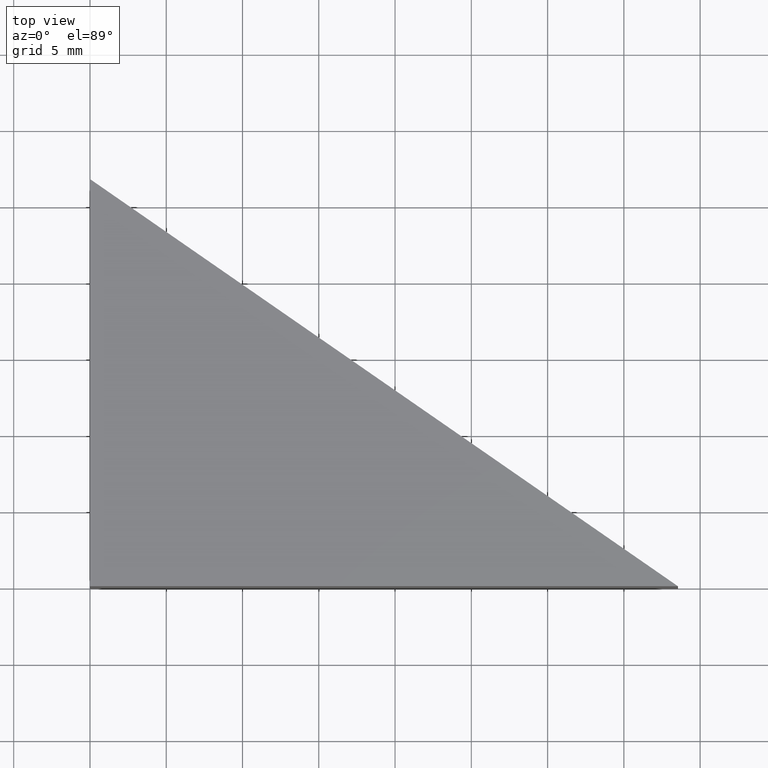
[diagram: clean part render]
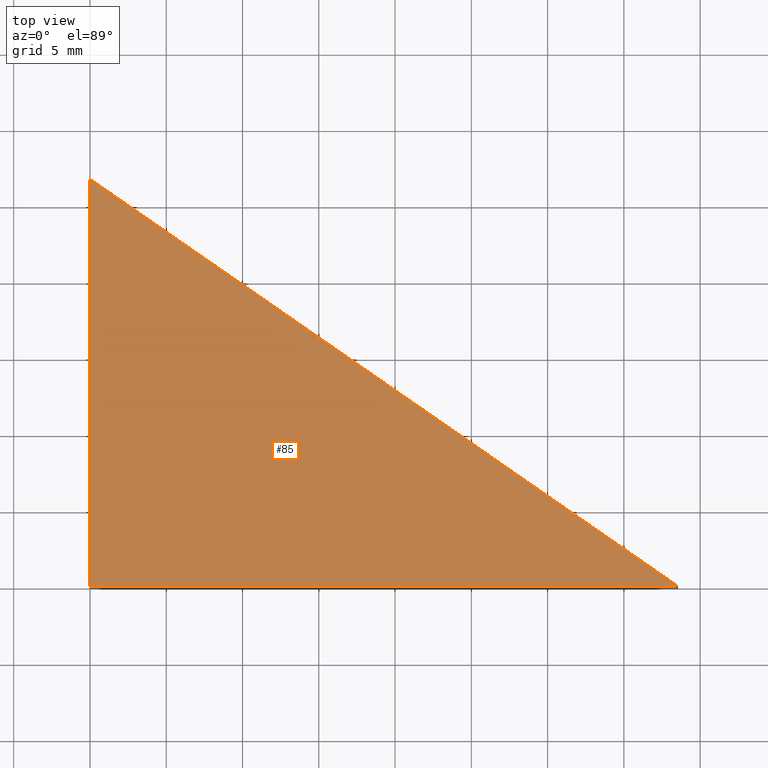
[diagram: same view with one face highlighted and labeled with its STEP entity id]
A machine part, top view. The second image highlights one B-rep face of the part: STEP entity #85.
In plain terms, the highlighted planar face has unit normal (0, 0, 1).
Its self-contained STEP definition (entity closure, byte-faithful):
#19=FACE_OUTER_BOUND('',#24,.T.);
#24=EDGE_LOOP('',(#73,#74,#75));
#28=LINE('',#146,#37);
#31=LINE('',#151,#40);
#33=LINE('',#154,#42);
#37=VECTOR('',#123,10.);
#40=VECTOR('',#128,10.);
#42=VECTOR('',#132,10.);
#46=VERTEX_POINT('',#144);
#47=VERTEX_POINT('',#145);
#48=VERTEX_POINT('',#150);
#52=EDGE_CURVE('',#46,#47,#28,.T.);
#55=EDGE_CURVE('',#47,#48,#31,.T.);
#57=EDGE_CURVE('',#48,#46,#33,.T.);
#73=ORIENTED_EDGE('',*,*,#52,.F.);
#74=ORIENTED_EDGE('',*,*,#57,.F.);
#75=ORIENTED_EDGE('',*,*,#55,.F.);
#80=PLANE('',#113);
#85=ADVANCED_FACE('',(#19),#80,.T.);
#113=AXIS2_PLACEMENT_3D('',#155,#133,#134);
#123=DIRECTION('',(-1.72390993122469E-16,1.,0.));
#128=DIRECTION('',(0.822077020060832,-0.569376301832016,0.));
#132=DIRECTION('',(-1.,-1.4399779826526E-16,0.));
#133=DIRECTION('center_axis',(0.,0.,1.));
#134=DIRECTION('ref_axis',(1.,0.,0.));
#144=CARTESIAN_POINT('',(1.27217044249445E-15,-1.11022302462516E-15,5.));
#145=CARTESIAN_POINT('',(-3.33066907387547E-15,26.7,5.));
#146=CARTESIAN_POINT('',(1.27217044249445E-15,-1.11022302462516E-15,5.));
#150=CARTESIAN_POINT('',(38.55,4.44089209850063E-15,5.));
#151=CARTESIAN_POINT('',(-3.33066907387547E-15,26.7,5.));
#154=CARTESIAN_POINT('',(38.55,4.44089209850063E-15,5.));
#155=CARTESIAN_POINT('Origin',(14.685854095565,8.76085409556497,5.));